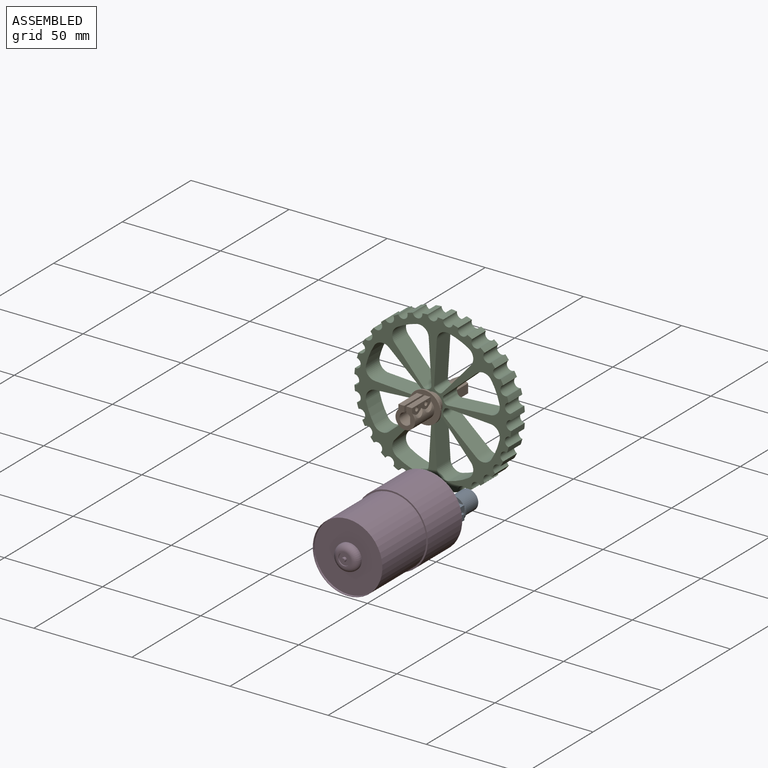
[diagram: assembled view]
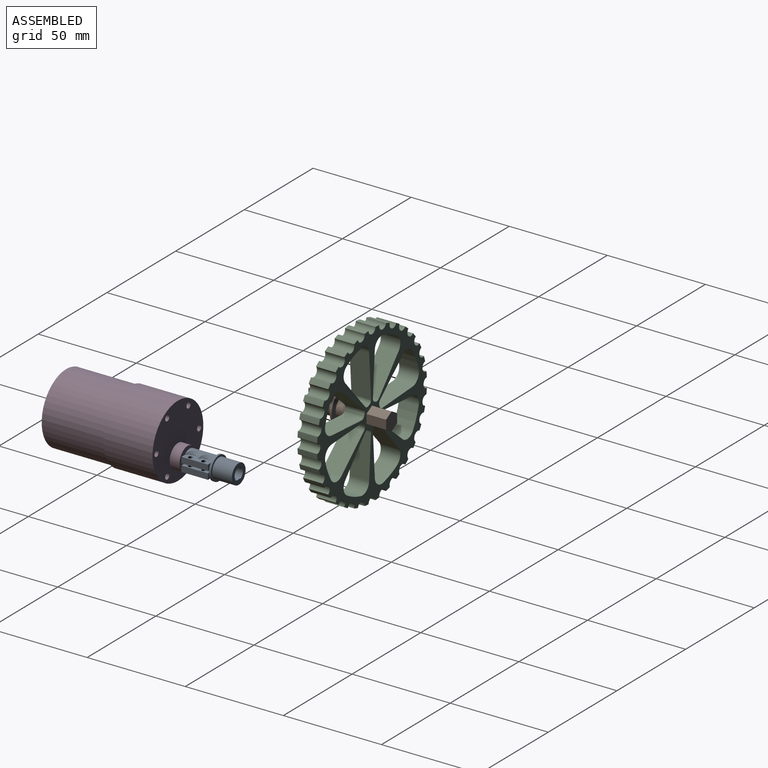
[diagram: assembled view, second angle]
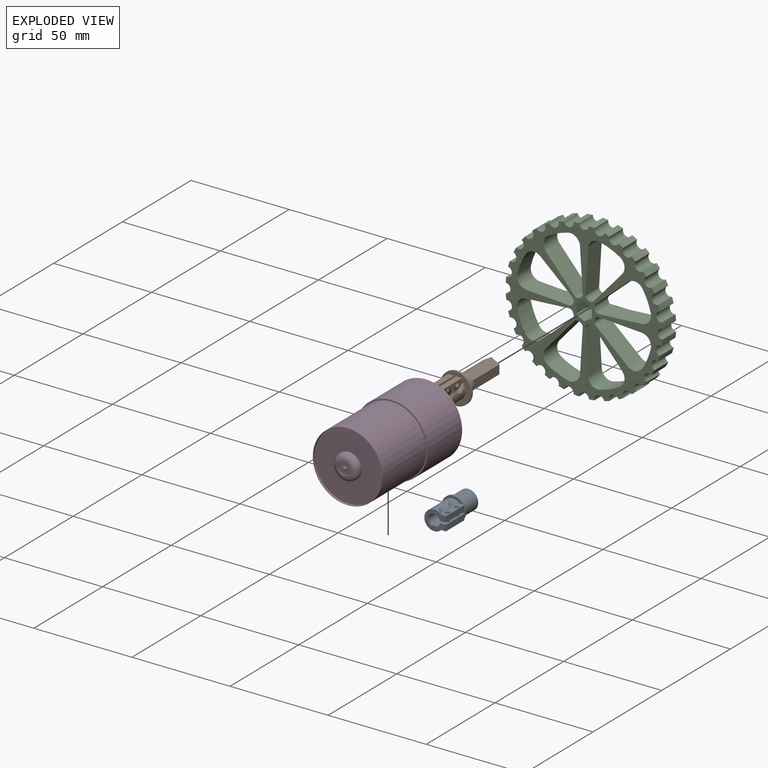
[diagram: exploded view]
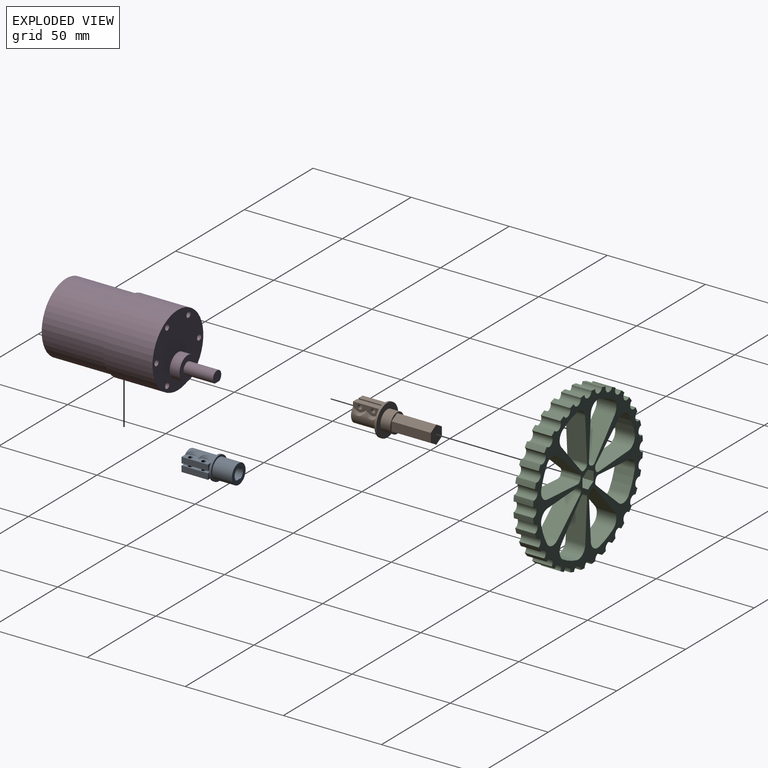
[diagram: exploded view, second angle]
ASSEMBLY  parts=4 mates=2
PART A: 34 faces, bbox 12.5x25.5x12.5 mm
  f0: cylinder r=3mm len=14mm, axis (0,1,0), area 34.3mm2, adj f8,f9,f10,f11
  f1: cylinder r=5mm len=14mm, axis (0,1,0), area 262.5mm2, adj f8,f10,f11,f12,f13,f18,f23,f24
  f2: cylinder r=1.1mm len=3mm, axis (1,0,0), area 20.7mm2, adj f10,f16
  f3: cylinder r=1.1mm len=3mm, axis (1,0,0), area 20.7mm2, adj f10,f16
  f4: cylinder r=1.1mm len=3mm, axis (1,0,0), area 20.7mm2, adj f7,f15
  f5: cylinder r=1.1mm len=3mm, axis (1,0,0), area 20.7mm2, adj f7,f15
  f6: cylinder r=3mm len=14mm, axis (0,1,0), area 161.8mm2, adj f7,f8,f9,f11,f12,f13
  f7: plane 13.5x3.02mm, normal (-1,0,0), area 33.1mm2, adj f4,f5,f6,f8,f12,f14
  f8: plane 10.98x10mm, normal (0,1,0), area 58.3mm2, adj f0,f1,f6,f7,f9,f10,f14,f15
  f9: plane 14x3.32mm, normal (1,0,0), area 46.4mm2, adj f0,f6,f8,f11
  f10: plane 14x3.02mm, normal (1,0,0), area 34.1mm2, adj f0,f1,f2,f3,f8,f11,f17,f18
  f11: plane 12x12mm, normal (0,1,0), area 87.8mm2, adj f0,f1,f6,f9,f10,f13,f28
  f12: plane 10.98x5mm, normal (0,-1,0), area 28.6mm2, adj f1,f6,f7,f13,f14,f15
  f13: plane 2x0.5mm, normal (1,0,0), area 1mm2, adj f1,f6,f11,f12
  f14: plane 13.5x3mm, normal (0,0,1), area 40.5mm2, adj f7,f8,f12,f15
  f15: plane 14x4.7mm, normal (1,0,0), area 39.9mm2, adj f4,f5,f8,f12,f14,f19,f20,f23
  f16: plane 14x4.7mm, normal (-1,0,0), area 39.9mm2, adj f2,f3,f8,f17,f18,f21,f22,f25
  f17: plane 13.5x3mm, normal (0,0,1), area 40.5mm2, adj f8,f10,f16,f18
  f18: plane 3x2.41mm, normal (0,-1,0), area 4.5mm2, adj f1,f10,f16,f17
  f19: cylinder r=2.5mm len=3.2mm, axis (-1,0,0), area 0mm2, adj f15,f23
  f20: cylinder r=2.5mm len=3.2mm, axis (-1,0,0), area 0mm2, adj f15,f24
  f21: cylinder r=2.5mm len=3.2mm, axis (1,0,0), area 0mm2, adj f16,f25
  f22: cylinder r=2.5mm len=3.2mm, axis (1,0,0), area 0mm2, adj f16,f26
  f23: bspline ~6.75x2.84mm, area 9.8mm2, adj f1,f15,f19
  f24: bspline ~6.75x2.84mm, area 9.8mm2, adj f1,f15,f20
  f25: bspline ~6.75x2.84mm, area 9.8mm2, adj f1,f16,f21
  f26: bspline ~6.75x2.84mm, area 9.8mm2, adj f1,f16,f22
  f27: plane 12x12mm, normal (0,-1,0), area 34.6mm2, adj f28,f29
  f28: cylinder r=6mm len=12mm, axis (0,1,0), area 37.7mm2, adj f11,f27
  f29: cylinder r=5mm len=10mm, axis (0,1,0), area 314.2mm2, adj f27,f30
  f30: plane 10x10mm, normal (0,-1,0), area 51.4mm2, adj f29,f31,f32
  f31: plane 10x3.32mm, normal (1,0,0), area 33.2mm2, adj f30,f32,f33
  f32: cylinder r=3mm len=10mm, axis (0,1,0), area 153.4mm2, adj f30,f31,f33
  f33: plane 6x5.5mm, normal (0,-1,0), area 27.1mm2, adj f31,f32
PART B: 38 faces, bbox 16.5x40.5x16.5 mm
  f0: plane 10x10mm, normal (0,-1,0), area 23.1mm2, adj f30,f31,f32,f33,f34,f35,f36
  f1: cylinder r=3mm len=14mm, axis (0,1,0), area 34.3mm2, adj f9,f10,f11,f12
  f2: cylinder r=5mm len=14mm, axis (0,1,0), area 262.5mm2, adj f9,f11,f12,f13,f14,f19,f24,f25
  f3: cylinder r=1.1mm len=3mm, axis (1,0,0), area 20.7mm2, adj f11,f17
  f4: cylinder r=1.1mm len=3mm, axis (1,0,0), area 20.7mm2, adj f11,f17
  f5: cylinder r=1.1mm len=3mm, axis (1,0,0), area 20.7mm2, adj f8,f16
  f6: cylinder r=1.1mm len=3mm, axis (1,0,0), area 20.7mm2, adj f8,f16
  f7: cylinder r=3mm len=14mm, axis (0,1,0), area 161.8mm2, adj f8,f9,f10,f12,f13,f14
  f8: plane 13.5x3.02mm, normal (-1,0,0), area 33.1mm2, adj f5,f6,f7,f9,f13,f15
  f9: plane 10.98x10mm, normal (0,1,0), area 58.3mm2, adj f1,f2,f7,f8,f10,f11,f15,f16
  f10: plane 14x3.32mm, normal (1,0,0), area 46.4mm2, adj f1,f7,f9,f12
  f11: plane 14x3.02mm, normal (1,0,0), area 34.1mm2, adj f1,f2,f3,f4,f9,f12,f18,f19
  f12: plane 16x16mm, normal (0,1,0), area 175.8mm2, adj f1,f2,f7,f10,f11,f14,f29
  f13: plane 10.98x5mm, normal (0,-1,0), area 28.6mm2, adj f2,f7,f8,f14,f15,f16
  f14: plane 2x0.5mm, normal (1,0,0), area 1mm2, adj f2,f7,f12,f13
  f15: plane 13.5x3mm, normal (0,0,1), area 40.5mm2, adj f8,f9,f13,f16
  f16: plane 14x4.7mm, normal (1,0,0), area 39.9mm2, adj f5,f6,f9,f13,f15,f20,f21,f24
  f17: plane 14x4.7mm, normal (-1,0,0), area 39.9mm2, adj f3,f4,f9,f18,f19,f22,f23,f26
  f18: plane 13.5x3mm, normal (0,0,1), area 40.5mm2, adj f9,f11,f17,f19
  f19: plane 3x2.41mm, normal (0,-1,0), area 4.5mm2, adj f2,f11,f17,f18
  f20: cylinder r=2.5mm len=3.2mm, axis (-1,0,0), area 0mm2, adj f16,f24
  f21: cylinder r=2.5mm len=3.2mm, axis (-1,0,0), area 0mm2, adj f16,f25
  f22: cylinder r=2.5mm len=3.2mm, axis (1,0,0), area 0mm2, adj f17,f26
  f23: cylinder r=2.5mm len=3.2mm, axis (1,0,0), area 0mm2, adj f17,f27
  f24: bspline ~6.75x2.84mm, area 9.8mm2, adj f2,f16,f20
  f25: bspline ~6.75x2.84mm, area 9.8mm2, adj f2,f16,f21
  f26: bspline ~6.75x2.84mm, area 9.8mm2, adj f2,f17,f22
  f27: bspline ~6.75x2.84mm, area 9.8mm2, adj f2,f17,f23
  f28: plane 16x16mm, normal (0,-1,0), area 122.5mm2, adj f29,f30
  f29: cylinder r=8mm len=16mm, axis (0,1,0), area 50.3mm2, adj f12,f28
  f30: cylinder r=5mm len=10mm, axis (0,1,0), area 157.1mm2, adj f0,f28
  f31: plane 20x4.62mm, normal (1,0,0), area 92.4mm2, adj f0,f32,f36,f37
  f32: plane 20x4mm, normal (0.5,0,0.87), area 92.4mm2, adj f0,f31,f33,f37
  f33: plane 20x4mm, normal (-0.5,0,0.87), area 92.4mm2, adj f0,f32,f34,f37
  f34: plane 20x4.62mm, normal (-1,0,0), area 92.4mm2, adj f0,f33,f35,f37
  f35: plane 20x4mm, normal (-0.5,0,-0.87), area 92.4mm2, adj f0,f34,f36,f37
  f36: plane 20x4mm, normal (0.5,0,-0.87), area 92.4mm2, adj f0,f31,f35,f37
  f37: plane 9.24x8mm, normal (0,-1,0), area 55.4mm2, adj f31,f32,f33,f34,f35,f36
PART C: 136 faces, bbox 10x79.8x79.8 mm
  f0: plane 79.84x79.84mm, normal (-1,0,0), area 1732.3mm2, adj f1,f2,f3,f4,f5,f6,f7,f8
  f1: cylinder r=35mm len=10.04mm, axis (1,0,0), area 109.1mm2, adj f0,f16,f114,f117
  f2: cylinder r=6mm len=10mm, axis (1,0,0), area 6.3mm2, adj f0,f16,f131,f133
  f3: cylinder r=35mm len=10.04mm, axis (1,0,0), area 109.1mm2, adj f0,f16,f112,f115
  f4: cylinder r=6mm len=10mm, axis (1,0,0), area 6.3mm2, adj f0,f16,f129,f130
  f5: cylinder r=35mm len=10.04mm, axis (1,0,0), area 109.1mm2, adj f0,f16,f110,f113
  f6: cylinder r=6mm len=10mm, axis (1,0,0), area 6.3mm2, adj f0,f16,f127,f128
  f7: cylinder r=35mm len=10.04mm, axis (1,0,0), area 109.1mm2, adj f0,f16,f108,f111
  f8: cylinder r=6mm len=10mm, axis (1,0,0), area 6.3mm2, adj f0,f16,f125,f126
  f9: cylinder r=35mm len=10.04mm, axis (1,0,0), area 109.1mm2, adj f0,f16,f106,f109
  f10: cylinder r=6mm len=10mm, axis (1,0,0), area 6.3mm2, adj f0,f16,f123,f124
  f11: cylinder r=35mm len=10.04mm, axis (1,0,0), area 109.1mm2, adj f0,f16,f104,f107
  f12: cylinder r=6mm len=10mm, axis (1,0,0), area 6.3mm2, adj f0,f16,f121,f122
  f13: cylinder r=35mm len=10.04mm, axis (1,0,0), area 109.1mm2, adj f0,f16,f105,f118
  f14: cylinder r=6mm len=10mm, axis (1,0,0), area 6.3mm2, adj f0,f16,f120,f135
  f15: cylinder r=35mm len=10.04mm, axis (1,0,0), area 109.1mm2, adj f0,f16,f116,f119
  f16: plane 79.84x79.84mm, normal (1,0,0), area 1732.3mm2, adj f1,f2,f3,f4,f5,f6,f7,f8
  f17: cylinder r=40mm len=10mm, axis (-1,0,0), area 28.5mm2, adj f0,f16,f49,f80
  f18: cylinder r=40mm len=10mm, axis (-1,0,0), area 28.5mm2, adj f0,f16,f79,f80
  f19: cylinder r=40mm len=10mm, axis (-1,0,0), area 28.5mm2, adj f0,f16,f78,f79
  f20: cylinder r=40mm len=10mm, axis (-1,0,0), area 28.5mm2, adj f0,f16,f77,f78
  f21: cylinder r=40mm len=10mm, axis (-1,0,0), area 28.5mm2, adj f0,f16,f76,f77
  f22: cylinder r=40mm len=10mm, axis (-1,0,0), area 28.5mm2, adj f0,f16,f75,f76
  f23: cylinder r=40mm len=10mm, axis (-1,0,0), area 28.5mm2, adj f0,f16,f74,f75
  f24: cylinder r=40mm len=10mm, axis (-1,0,0), area 28.5mm2, adj f0,f16,f73,f74
  f25: cylinder r=40mm len=10mm, axis (-1,0,0), area 28.5mm2, adj f0,f16,f72,f73
  f26: cylinder r=40mm len=10mm, axis (-1,0,0), area 28.5mm2, adj f0,f16,f71,f72
  f27: cylinder r=40mm len=10mm, axis (-1,0,0), area 28.5mm2, adj f0,f16,f70,f71
  f28: cylinder r=40mm len=10mm, axis (-1,0,0), area 28.5mm2, adj f0,f16,f69,f70
  f29: cylinder r=40mm len=10mm, axis (-1,0,0), area 28.5mm2, adj f0,f16,f68,f69
  f30: cylinder r=40mm len=10mm, axis (-1,0,0), area 28.5mm2, adj f0,f16,f67,f68
  f31: cylinder r=40mm len=10mm, axis (-1,0,0), area 28.5mm2, adj f0,f16,f66,f67
  f32: cylinder r=40mm len=10mm, axis (-1,0,0), area 28.5mm2, adj f0,f16,f65,f66
  f33: cylinder r=40mm len=10mm, axis (-1,0,0), area 28.5mm2, adj f0,f16,f64,f65
  f34: cylinder r=40mm len=10mm, axis (-1,0,0), area 28.5mm2, adj f0,f16,f63,f64
  f35: cylinder r=40mm len=10mm, axis (-1,0,0), area 28.5mm2, adj f0,f16,f62,f63
  f36: cylinder r=40mm len=10mm, axis (-1,0,0), area 28.5mm2, adj f0,f16,f61,f62
  f37: cylinder r=40mm len=10mm, axis (-1,0,0), area 28.5mm2, adj f0,f16,f60,f61
  f38: cylinder r=40mm len=10mm, axis (-1,0,0), area 28.5mm2, adj f0,f16,f59,f60
  f39: cylinder r=40mm len=10mm, axis (-1,0,0), area 28.5mm2, adj f0,f16,f58,f59
  f40: cylinder r=40mm len=10mm, axis (-1,0,0), area 28.5mm2, adj f0,f16,f57,f58
  f41: cylinder r=40mm len=10mm, axis (-1,0,0), area 28.5mm2, adj f0,f16,f56,f57
  f42: cylinder r=40mm len=10mm, axis (-1,0,0), area 28.5mm2, adj f0,f16,f55,f56
  f43: cylinder r=40mm len=10mm, axis (-1,0,0), area 28.5mm2, adj f0,f16,f54,f55
  f44: cylinder r=40mm len=10mm, axis (-1,0,0), area 28.5mm2, adj f0,f16,f53,f54
  f45: cylinder r=40mm len=10mm, axis (-1,0,0), area 28.5mm2, adj f0,f16,f52,f53
  f46: cylinder r=40mm len=10mm, axis (-1,0,0), area 28.5mm2, adj f0,f16,f51,f52
  f47: cylinder r=40mm len=10mm, axis (-1,0,0), area 28.5mm2, adj f0,f16,f50,f51
  f48: cylinder r=40mm len=10mm, axis (-1,0,0), area 28.5mm2, adj f0,f16,f49,f50
  f49: cylinder r=2.5mm len=10mm, axis (1,0,0), area 77mm2, adj f0,f16,f17,f48
  f50: cylinder r=2.5mm len=10mm, axis (1,0,0), area 77mm2, adj f0,f16,f47,f48
  f51: cylinder r=2.5mm len=10mm, axis (1,0,0), area 77mm2, adj f0,f16,f46,f47
  f52: cylinder r=2.5mm len=10mm, axis (1,0,0), area 77mm2, adj f0,f16,f45,f46
  f53: cylinder r=2.5mm len=10mm, axis (1,0,0), area 77mm2, adj f0,f16,f44,f45
  f54: cylinder r=2.5mm len=10mm, axis (1,0,0), area 77mm2, adj f0,f16,f43,f44
  f55: cylinder r=2.5mm len=10mm, axis (1,0,0), area 77mm2, adj f0,f16,f42,f43
  f56: cylinder r=2.5mm len=10mm, axis (1,0,0), area 77mm2, adj f0,f16,f41,f42
  f57: cylinder r=2.5mm len=10mm, axis (1,0,0), area 77mm2, adj f0,f16,f40,f41
  f58: cylinder r=2.5mm len=10mm, axis (1,0,0), area 77mm2, adj f0,f16,f39,f40
  f59: cylinder r=2.5mm len=10mm, axis (1,0,0), area 77mm2, adj f0,f16,f38,f39
  f60: cylinder r=2.5mm len=10mm, axis (1,0,0), area 77mm2, adj f0,f16,f37,f38
  f61: cylinder r=2.5mm len=10mm, axis (1,0,0), area 77mm2, adj f0,f16,f36,f37
  f62: cylinder r=2.5mm len=10mm, axis (1,0,0), area 77mm2, adj f0,f16,f35,f36
  f63: cylinder r=2.5mm len=10mm, axis (1,0,0), area 77mm2, adj f0,f16,f34,f35
  f64: cylinder r=2.5mm len=10mm, axis (1,0,0), area 77mm2, adj f0,f16,f33,f34
  f65: cylinder r=2.5mm len=10mm, axis (1,0,0), area 77mm2, adj f0,f16,f32,f33
  f66: cylinder r=2.5mm len=10mm, axis (1,0,0), area 77mm2, adj f0,f16,f31,f32
  f67: cylinder r=2.5mm len=10mm, axis (1,0,0), area 77mm2, adj f0,f16,f30,f31
  f68: cylinder r=2.5mm len=10mm, axis (1,0,0), area 77mm2, adj f0,f16,f29,f30
  f69: cylinder r=2.5mm len=10mm, axis (1,0,0), area 77mm2, adj f0,f16,f28,f29
  f70: cylinder r=2.5mm len=10mm, axis (1,0,0), area 77mm2, adj f0,f16,f27,f28
  f71: cylinder r=2.5mm len=10mm, axis (1,0,0), area 77mm2, adj f0,f16,f26,f27
  f72: cylinder r=2.5mm len=10mm, axis (1,0,0), area 77mm2, adj f0,f16,f25,f26
  f73: cylinder r=2.5mm len=10mm, axis (1,0,0), area 77mm2, adj f0,f16,f24,f25
  f74: cylinder r=2.5mm len=10mm, axis (1,0,0), area 77mm2, adj f0,f16,f23,f24
  f75: cylinder r=2.5mm len=10mm, axis (1,0,0), area 77mm2, adj f0,f16,f22,f23
  f76: cylinder r=2.5mm len=10mm, axis (1,0,0), area 77mm2, adj f0,f16,f21,f22
  f77: cylinder r=2.5mm len=10mm, axis (1,0,0), area 77mm2, adj f0,f16,f20,f21
  f78: cylinder r=2.5mm len=10mm, axis (1,0,0), area 77mm2, adj f0,f16,f19,f20
  f79: cylinder r=2.5mm len=10mm, axis (1,0,0), area 77mm2, adj f0,f16,f18,f19
  f80: cylinder r=2.5mm len=10mm, axis (1,0,0), area 77mm2, adj f0,f16,f17,f18
  f81: plane 10x4.62mm, normal (0,0,-1), area 46.2mm2, adj f0,f16,f82,f86
  f82: plane 10x4mm, normal (0,0.87,-0.5), area 46.2mm2, adj f0,f16,f81,f83
  f83: plane 10x4mm, normal (0,0.87,0.5), area 46.2mm2, adj f0,f16,f82,f84
  f84: plane 10x4.62mm, normal (0,0,1), area 46.2mm2, adj f0,f16,f83,f85
  f85: plane 10x4mm, normal (0,-0.87,0.5), area 46.2mm2, adj f0,f16,f84,f86
  f86: plane 10x4mm, normal (0,-0.87,-0.5), area 46.2mm2, adj f0,f16,f81,f85
  f87: cylinder r=6mm len=10mm, axis (1,0,0), area 6.3mm2, adj f0,f16,f132,f134
  f88: plane 21.81x10mm, normal (0,-1,-0.06), area 218.5mm2, adj f0,f16,f116,f132
  f89: plane 21.81x10mm, normal (0,1,-0.06), area 218.5mm2, adj f0,f16,f117,f133
  f90: plane 16.39x14.45mm, normal (0,0.75,0.66), area 218.5mm2, adj f0,f16,f119,f134
  f91: plane 16.39x14.45mm, normal (0,-0.66,-0.75), area 218.5mm2, adj f0,f16,f118,f135
  f92: plane 21.81x10mm, normal (0,0.06,1), area 218.5mm2, adj f0,f16,f105,f120
  f93: plane 21.81x10mm, normal (0,0.06,-1), area 218.5mm2, adj f0,f16,f104,f121
  f94: plane 16.39x14.45mm, normal (0,-0.66,0.75), area 218.5mm2, adj f0,f16,f107,f122
  f95: plane 16.39x14.45mm, normal (0,0.75,-0.66), area 218.5mm2, adj f0,f16,f106,f123
  f96: plane 21.81x10mm, normal (0,-1,0.06), area 218.5mm2, adj f0,f16,f109,f124
  f97: plane 21.81x10mm, normal (0,1,0.06), area 218.5mm2, adj f0,f16,f108,f125
  f98: plane 16.39x14.45mm, normal (0,-0.75,-0.66), area 218.5mm2, adj f0,f16,f111,f126
  f99: plane 16.39x14.45mm, normal (0,0.66,0.75), area 218.5mm2, adj f0,f16,f110,f127
  f100: plane 21.81x10mm, normal (0,-0.06,-1), area 218.5mm2, adj f0,f16,f113,f128
  f101: plane 21.81x10mm, normal (0,-0.06,1), area 218.5mm2, adj f0,f16,f112,f129
  f102: plane 16.39x14.45mm, normal (0,0.66,-0.75), area 218.5mm2, adj f0,f16,f115,f130
  f103: plane 16.39x14.45mm, normal (0,-0.75,0.66), area 218.5mm2, adj f0,f16,f114,f131
  f104: cylinder r=5mm len=10mm, axis (1,0,0), area 87.2mm2, adj f0,f11,f16,f93
  f105: cylinder r=5mm len=10mm, axis (1,0,0), area 87.2mm2, adj f0,f13,f16,f92
  f106: cylinder r=5mm len=10mm, axis (1,0,0), area 87.2mm2, adj f0,f9,f16,f95
  f107: cylinder r=5mm len=10mm, axis (1,0,0), area 87.2mm2, adj f0,f11,f16,f94
  f108: cylinder r=5mm len=10mm, axis (1,0,0), area 87.2mm2, adj f0,f7,f16,f97
  f109: cylinder r=5mm len=10mm, axis (1,0,0), area 87.2mm2, adj f0,f9,f16,f96
  f110: cylinder r=5mm len=10mm, axis (1,0,0), area 87.2mm2, adj f0,f5,f16,f99
  f111: cylinder r=5mm len=10mm, axis (1,0,0), area 87.2mm2, adj f0,f7,f16,f98
  f112: cylinder r=5mm len=10mm, axis (1,0,0), area 87.2mm2, adj f0,f3,f16,f101
  f113: cylinder r=5mm len=10mm, axis (1,0,0), area 87.2mm2, adj f0,f5,f16,f100
  f114: cylinder r=5mm len=10mm, axis (1,0,0), area 87.2mm2, adj f0,f1,f16,f103
  f115: cylinder r=5mm len=10mm, axis (1,0,0), area 87.2mm2, adj f0,f3,f16,f102
  f116: cylinder r=5mm len=10mm, axis (1,0,0), area 87.2mm2, adj f0,f15,f16,f88
  f117: cylinder r=5mm len=10mm, axis (1,0,0), area 87.2mm2, adj f0,f1,f16,f89
  f118: cylinder r=5mm len=10mm, axis (1,0,0), area 87.2mm2, adj f0,f13,f16,f91
  f119: cylinder r=5mm len=10mm, axis (1,0,0), area 87.2mm2, adj f0,f15,f16,f90
  f120: cylinder r=2mm len=10mm, axis (1,0,0), area 25.9mm2, adj f0,f14,f16,f92
  f121: cylinder r=2mm len=10mm, axis (1,0,0), area 25.9mm2, adj f0,f12,f16,f93
  f122: cylinder r=2mm len=10mm, axis (1,0,0), area 25.9mm2, adj f0,f12,f16,f94
  f123: cylinder r=2mm len=10mm, axis (1,0,0), area 25.9mm2, adj f0,f10,f16,f95
  f124: cylinder r=2mm len=10mm, axis (1,0,0), area 25.9mm2, adj f0,f10,f16,f96
  f125: cylinder r=2mm len=10mm, axis (1,0,0), area 25.9mm2, adj f0,f8,f16,f97
  f126: cylinder r=2mm len=10mm, axis (1,0,0), area 25.9mm2, adj f0,f8,f16,f98
  f127: cylinder r=2mm len=10mm, axis (1,0,0), area 25.9mm2, adj f0,f6,f16,f99
  f128: cylinder r=2mm len=10mm, axis (1,0,0), area 25.9mm2, adj f0,f6,f16,f100
  f129: cylinder r=2mm len=10mm, axis (1,0,0), area 25.9mm2, adj f0,f4,f16,f101
  f130: cylinder r=2mm len=10mm, axis (1,0,0), area 25.9mm2, adj f0,f4,f16,f102
  f131: cylinder r=2mm len=10mm, axis (1,0,0), area 25.9mm2, adj f0,f2,f16,f103
  f132: cylinder r=2mm len=10mm, axis (1,0,0), area 25.9mm2, adj f0,f16,f87,f88
  f133: cylinder r=2mm len=10mm, axis (1,0,0), area 25.9mm2, adj f0,f2,f16,f89
  f134: cylinder r=2mm len=10mm, axis (1,0,0), area 25.9mm2, adj f0,f16,f87,f90
  f135: cylinder r=2mm len=10mm, axis (1,0,0), area 25.9mm2, adj f0,f14,f16,f91
PART D: 32 faces, bbox 37x80.5x37 mm
  f0: plane 6x5.5mm, normal (0,1,0), area 27.1mm2, adj f17,f18
  f1: cylinder r=18.5mm len=37mm, axis (0,1,0), area 2906mm2, adj f2,f3
  f2: plane 37x37mm, normal (0,-1,0), area 85.4mm2, adj f1,f4
  f3: plane 37x37mm, normal (0,1,0), area 919.7mm2, adj f1,f15,f20,f22,f24,f26,f28,f30
  f4: cylinder r=17.75mm len=35.5mm, axis (0,1,0), area 3568.8mm2, adj f2,f5
  f5: plane 35.5x35.5mm, normal (0,-1,0), area 27.7mm2, adj f4,f6
  f6: cylinder r=17.5mm len=35mm, axis (0,-1,0), area 110mm2, adj f5,f7
  f7: plane 35x35mm, normal (0,-1,0), area 829.4mm2, adj f6,f8
  f8: cylinder r=6.5mm len=13mm, axis (0,1,0), area 20.4mm2, adj f7,f14
  f9: plane 7x7mm, normal (0,-1,0), area 10.2mm2, adj f11,f14
  f10: cylinder r=1mm len=2mm, axis (0,-1,0), area 9.4mm2, adj f12,f13
  f11: cylinder r=3mm len=6mm, axis (0,-1,0), area 9.4mm2, adj f9,f12
  f12: plane 6x6mm, normal (0,-1,0), area 25.1mm2, adj f10,f11
  f13: plane 2x2mm, normal (0,-1,0), area 3.1mm2, adj f10
  f14: torus R=3.5mm, axis (0,-1,0), area 160.2mm2, adj f8,f9
  f15: cylinder r=6mm len=12mm, axis (0,-1,0), area 188.5mm2, adj f3,f16
  f16: plane 12x12mm, normal (0,1,0), area 84.8mm2, adj f15,f17
  f17: cylinder r=3mm len=15mm, axis (0,-1,0), area 233.5mm2, adj f0,f16,f18,f19
  f18: plane 14x3.32mm, normal (0,0,-1), area 46.4mm2, adj f0,f17,f19
  f19: plane 3.32x0.5mm, normal (0,1,0), area 1.1mm2, adj f17,f18
  f20: cylinder r=1.5mm len=7mm, axis (0,1,0), area 66mm2, adj f3,f21
  f21: plane 3x3mm, normal (0,1,0), area 7.1mm2, adj f20
  f22: cylinder r=1.5mm len=7mm, axis (0,1,0), area 66mm2, adj f3,f23
  f23: plane 3x3mm, normal (0,1,0), area 7.1mm2, adj f22
  f24: cylinder r=1.5mm len=7mm, axis (0,1,0), area 66mm2, adj f3,f25
  f25: plane 3x3mm, normal (0,1,0), area 7.1mm2, adj f24
  f26: cylinder r=1.5mm len=7mm, axis (0,1,0), area 66mm2, adj f3,f27
  f27: plane 3x3mm, normal (0,1,0), area 7.1mm2, adj f26
  f28: cylinder r=1.5mm len=7mm, axis (0,1,0), area 66mm2, adj f3,f29
  f29: plane 3x3mm, normal (0,1,0), area 7.1mm2, adj f28
  f30: cylinder r=1.5mm len=7mm, axis (0,1,0), area 66mm2, adj f3,f31
  f31: plane 3x3mm, normal (0,1,0), area 7.1mm2, adj f30
PLACE A rot(axis=(0.71,0,0.71),180deg) t=(0.62,-2.33,-0.91)mm
PLACE B rot(axis=(0,0,-1),180deg) t=(-38.8,32.98,21.7)mm
PLACE C rot(axis=(0.58,-0.58,-0.58),120deg) t=(-38.8,62.98,21.7)mm
PLACE D t=(0.62,-8.33,6.09)mm
MATE fastened B.f0 <-> C.f16  axis (0,-1,0) through (-38.8,52.98,26.32)mm
MATE fastened D.f18 <-> A.f9  axis (0,0,1) through (2.28,-2.33,-3.41)mm
